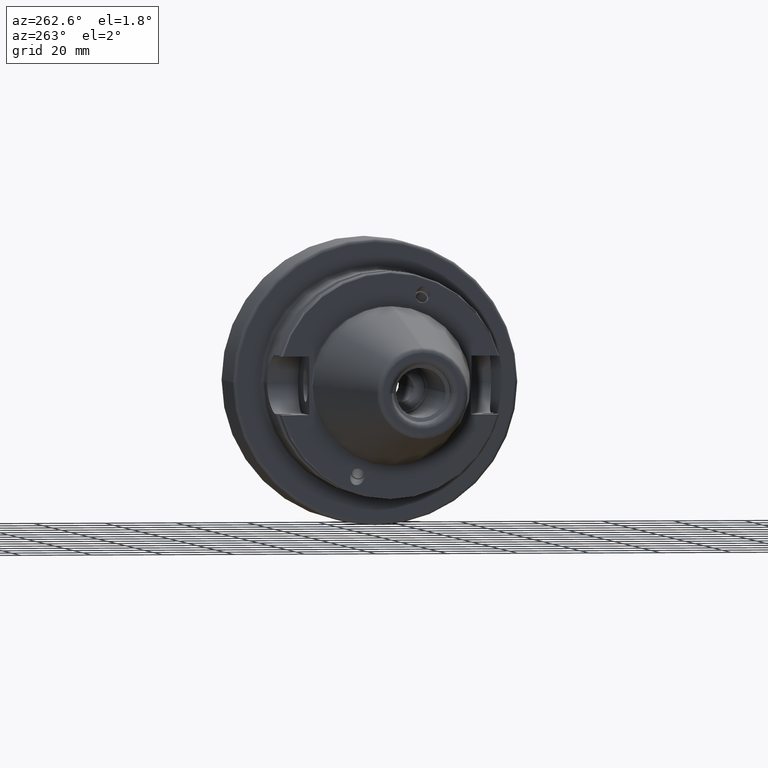
[diagram: clean part render]
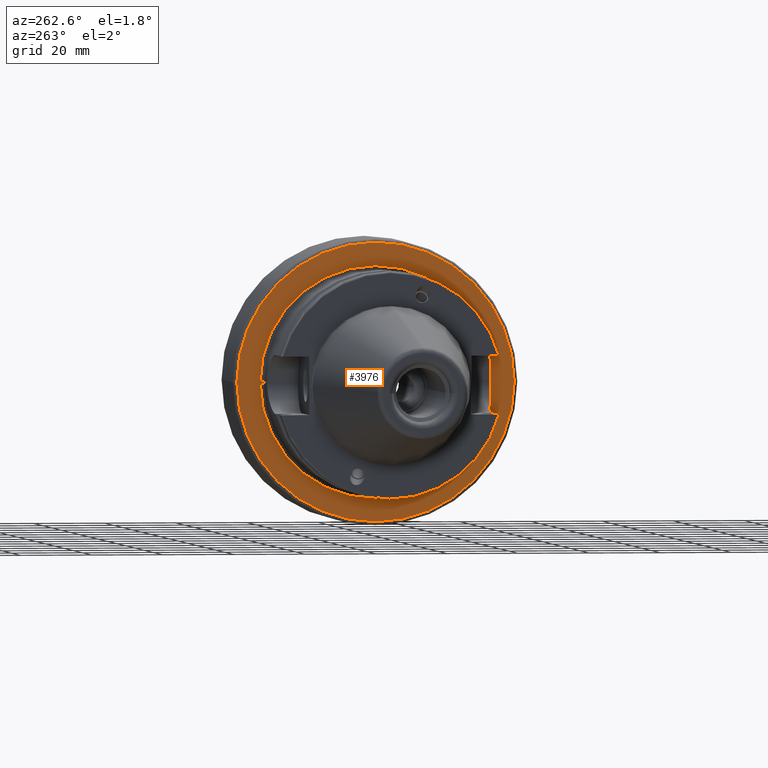
[diagram: same view with one face highlighted and labeled with its STEP entity id]
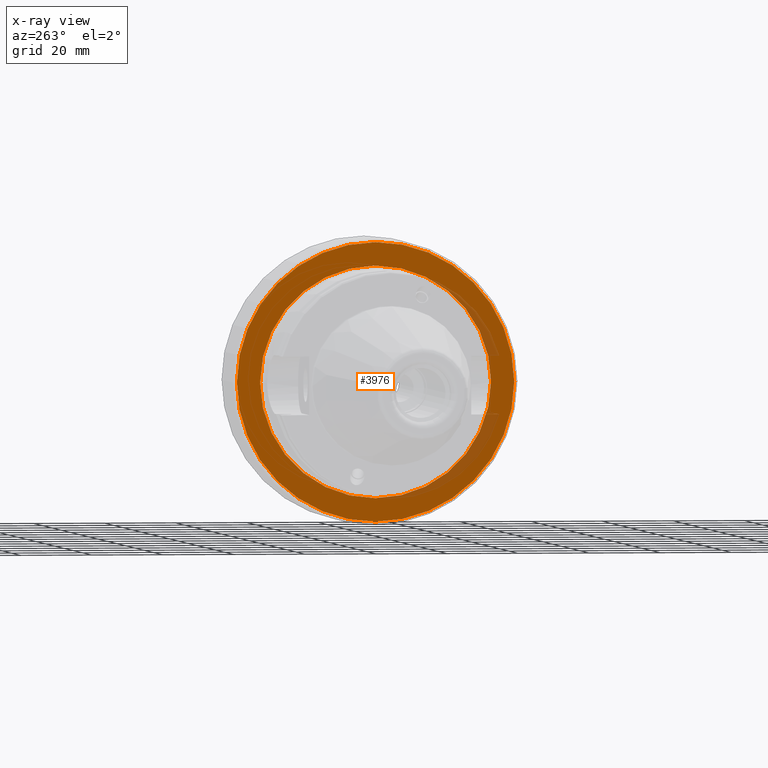
[diagram: x-ray of the same camera — body ghosted, the highlighted face saturated]
A machine part, auxiliary view. The second image highlights one B-rep face of the part: STEP entity #3976.
The next image is the same camera in x-ray: the body ghosted, the highlighted face saturated — about 10% of this face is hidden behind the body in this view.
In plain terms, the highlighted planar face has unit normal (1, 0, 0).
Its self-contained STEP definition (entity closure, byte-faithful):
#1268=CARTESIAN_POINT('',(1.378E0,0.E0,0.E0));
#1269=DIRECTION('',(-1.E0,0.E0,0.E0));
#1270=DIRECTION('',(0.E0,1.E0,0.E0));
#1271=AXIS2_PLACEMENT_3D('',#1268,#1269,#1270);
#1273=CARTESIAN_POINT('',(1.378E0,0.E0,0.E0));
#1274=DIRECTION('',(-1.E0,0.E0,0.E0));
#1275=DIRECTION('',(0.E0,-1.E0,0.E0));
#1276=AXIS2_PLACEMENT_3D('',#1273,#1274,#1275);
#1278=CARTESIAN_POINT('',(1.378E0,0.E0,0.E0));
#1279=DIRECTION('',(1.E0,0.E0,0.E0));
#1280=DIRECTION('',(0.E0,-1.E0,0.E0));
#1281=AXIS2_PLACEMENT_3D('',#1278,#1279,#1280);
#1283=CARTESIAN_POINT('',(1.378E0,0.E0,0.E0));
#1284=DIRECTION('',(1.E0,0.E0,0.E0));
#1285=DIRECTION('',(0.E0,1.E0,0.E0));
#1286=AXIS2_PLACEMENT_3D('',#1283,#1284,#1285);
#2721=CARTESIAN_POINT('',(1.378E0,1.279E0,0.E0));
#2722=CARTESIAN_POINT('',(1.378E0,-1.279E0,0.E0));
#2723=VERTEX_POINT('',#2721);
#2724=VERTEX_POINT('',#2722);
#2748=CARTESIAN_POINT('',(1.378E0,-1.536E0,0.E0));
#2749=CARTESIAN_POINT('',(1.378E0,1.536E0,0.E0));
#2750=VERTEX_POINT('',#2748);
#2751=VERTEX_POINT('',#2749);
#3960=CARTESIAN_POINT('',(1.378E0,0.E0,0.E0));
#3961=DIRECTION('',(1.E0,0.E0,0.E0));
#3962=DIRECTION('',(0.E0,-1.E0,0.E0));
#3963=AXIS2_PLACEMENT_3D('',#3960,#3961,#3962);
#3964=PLANE('',#3963);
#3966=ORIENTED_EDGE('',*,*,#3965,.T.);
#3968=ORIENTED_EDGE('',*,*,#3967,.T.);
#3969=EDGE_LOOP('',(#3966,#3968));
#3970=FACE_OUTER_BOUND('',#3969,.F.);
#3972=ORIENTED_EDGE('',*,*,#3971,.T.);
#3973=ORIENTED_EDGE('',*,*,#3950,.T.);
#3974=EDGE_LOOP('',(#3972,#3973));
#3975=FACE_BOUND('',#3974,.F.);
#3976=ADVANCED_FACE('',(#3970,#3975),#3964,.F.);
#1272=CIRCLE('',#1271,1.279E0);
#1277=CIRCLE('',#1276,1.279E0);
#1282=CIRCLE('',#1281,1.536E0);
#1287=CIRCLE('',#1286,1.536E0);
#3950=EDGE_CURVE('',#2724,#2723,#1277,.T.);
#3965=EDGE_CURVE('',#2750,#2751,#1282,.T.);
#3967=EDGE_CURVE('',#2751,#2750,#1287,.T.);
#3971=EDGE_CURVE('',#2723,#2724,#1272,.T.);